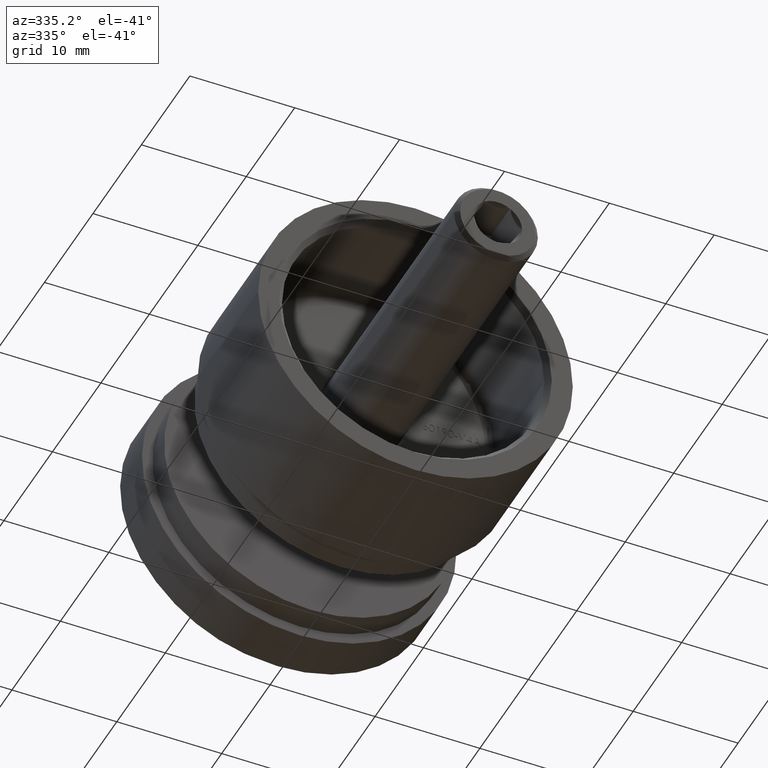
[diagram: clean part render]
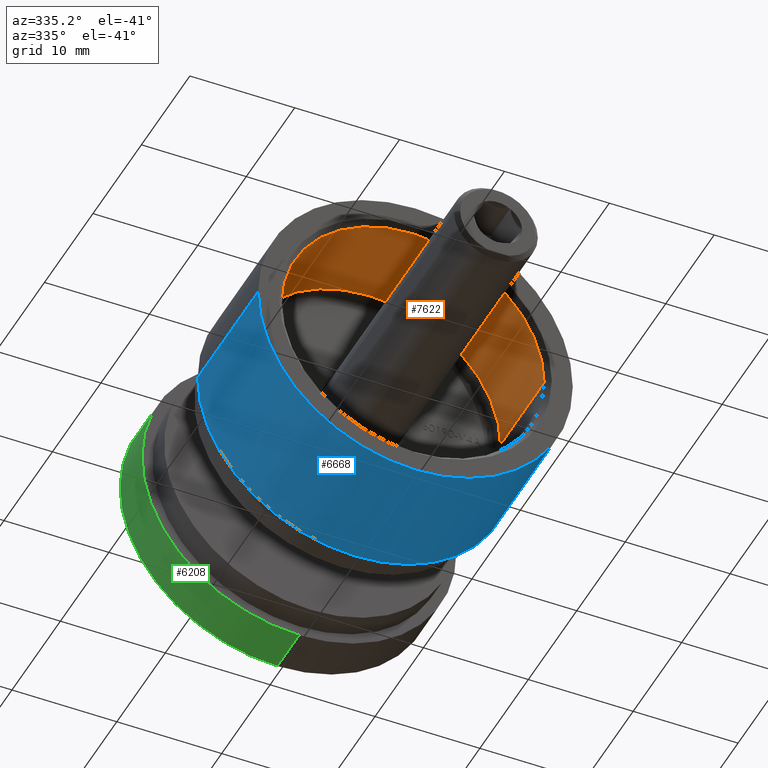
[diagram: same view with three faces highlighted in distinct colors, each labeled with its STEP entity id]
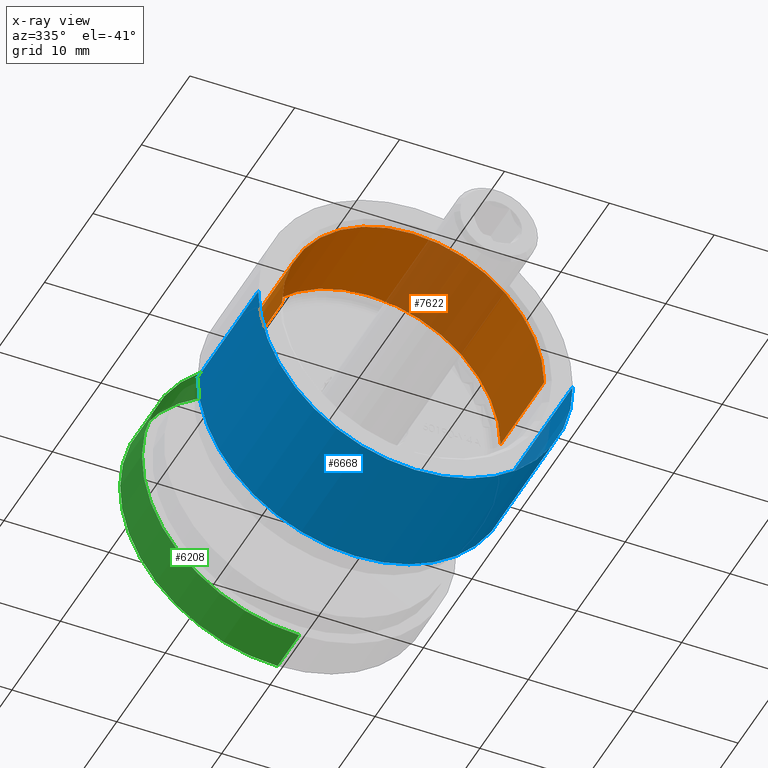
[diagram: x-ray of the same camera — body ghosted, the three highlighted faces saturated]
A machine part, auxiliary view with three faces highlighted in distinct colors.
The next image is the same camera in x-ray (body ghosted, the three faces saturated) — at least one of them is partly hidden behind the body in this view.
Their STEP definitions:

[orange] entity #7622 — the highlighted cylindrical surface (partial cylindrical patch) has radius 12.5 mm, axis along (-0, -1, -0).
#16 = AXIS2_PLACEMENT_3D ( 'NONE', #2054, #4400, #9917 ) ;
#43 = DIRECTION ( 'NONE',  ( 1.650797095189058802E-31, 1.000000000000000000, 0.000000000000000000 ) ) ;
#1051 = EDGE_CURVE ( 'NONE', #6366, #5705, #1372, .T. ) ;
#1217 = CARTESIAN_POINT ( 'NONE',  ( -12.50000000000000178, 0.5000000000000056621, 1.530808498934191521E-15 ) ) ;
#1279 = AXIS2_PLACEMENT_3D ( 'NONE', #1952, #12254, #3058 ) ;
#1372 = LINE ( 'NONE', #2470, #13678 ) ;
#1531 = ORIENTED_EDGE ( 'NONE', *, *, #11291, .T. ) ;
#1952 = CARTESIAN_POINT ( 'NONE',  ( -2.571758278209443239E-15, 0.5000000000000056621, 0.000000000000000000 ) ) ;
#2054 = CARTESIAN_POINT ( 'NONE',  ( -2.571758278209443239E-15, 0.5000000000000056621, 0.000000000000000000 ) ) ;
#2453 = CARTESIAN_POINT ( 'NONE',  ( -1.010333609296567339E-15, 0.5000000000000056621, 12.50000000000000000 ) ) ;
#2470 = CARTESIAN_POINT ( 'NONE',  ( -12.50000000000000178, 10.49999999999999822, 1.530808498934191521E-15 ) ) ;
#3058 = DIRECTION ( 'NONE',  ( 0.000000000000000000, 0.000000000000000000, -1.000000000000000000 ) ) ;
#3099 = CYLINDRICAL_SURFACE ( 'NONE', #10686, 12.50000000000000000 ) ;
#3212 = CARTESIAN_POINT ( 'NONE',  ( -12.50000000000000178, 9.499999999999998224, 1.530808498934191521E-15 ) ) ;
#3673 = ORIENTED_EDGE ( 'NONE', *, *, #1051, .F. ) ;
#4173 = VERTEX_POINT ( 'NONE', #4257 ) ;
#4257 = CARTESIAN_POINT ( 'NONE',  ( 12.49999999999999822, 9.499999999999998224, 0.000000000000000000 ) ) ;
#4395 = AXIS2_PLACEMENT_3D ( 'NONE', #11259, #43, #13640 ) ;
#4400 = DIRECTION ( 'NONE',  ( 0.000000000000000000, -1.000000000000000000, 0.000000000000000000 ) ) ;
#4724 = CARTESIAN_POINT ( 'NONE',  ( 12.49999999999999822, 10.49999999999999822, 0.000000000000000000 ) ) ;
#4932 = DIRECTION ( 'NONE',  ( -1.650797095189058802E-31, -1.000000000000000000, -0.000000000000000000 ) ) ;
#5578 = VERTEX_POINT ( 'NONE', #2453 ) ;
#5705 = VERTEX_POINT ( 'NONE', #1217 ) ;
#6366 = VERTEX_POINT ( 'NONE', #3212 ) ;
#6388 = EDGE_CURVE ( 'NONE', #7308, #5578, #11409, .T. ) ;
#6638 = LINE ( 'NONE', #4724, #9247 ) ;
#6742 = EDGE_LOOP ( 'NONE', ( #3673, #13224, #1531, #13690, #11341 ) ) ;
#7017 = DIRECTION ( 'NONE',  ( -1.650797095189058802E-31, -1.000000000000000000, -0.000000000000000000 ) ) ;
#7308 = VERTEX_POINT ( 'NONE', #14034 ) ;
#7520 = FACE_OUTER_BOUND ( 'NONE', #6742, .T. ) ;
#7622 = ADVANCED_FACE ( 'NONE', ( #7520 ), #3099, .F. ) ;
#8144 = CARTESIAN_POINT ( 'NONE',  ( -2.571758278209441661E-15, 10.49999999999999822, 0.000000000000000000 ) ) ;
#8432 = DIRECTION ( 'NONE',  ( 1.000000000000000000, 0.000000000000000000, 0.000000000000000000 ) ) ;
#9247 = VECTOR ( 'NONE', #7017, 1000.000000000000000 ) ;
#9917 = DIRECTION ( 'NONE',  ( 0.000000000000000000, 0.000000000000000000, -1.000000000000000000 ) ) ;
#10686 = AXIS2_PLACEMENT_3D ( 'NONE', #8144, #11518, #8432 ) ;
#11259 = CARTESIAN_POINT ( 'NONE',  ( -2.571758278209441661E-15, 9.499999999999998224, 0.000000000000000000 ) ) ;
#11291 = EDGE_CURVE ( 'NONE', #4173, #7308, #6638, .T. ) ;
#11341 = ORIENTED_EDGE ( 'NONE', *, *, #14267, .T. ) ;
#11409 = CIRCLE ( 'NONE', #16, 12.50000000000000000 ) ;
#11518 = DIRECTION ( 'NONE',  ( -1.650797095189058802E-31, -1.000000000000000000, -0.000000000000000000 ) ) ;
#12060 = CIRCLE ( 'NONE', #4395, 12.50000000000000000 ) ;
#12254 = DIRECTION ( 'NONE',  ( 0.000000000000000000, -1.000000000000000000, 0.000000000000000000 ) ) ;
#12605 = EDGE_CURVE ( 'NONE', #6366, #4173, #12060, .T. ) ;
#13224 = ORIENTED_EDGE ( 'NONE', *, *, #12605, .T. ) ;
#13640 = DIRECTION ( 'NONE',  ( 1.000000000000000000, 0.000000000000000000, 0.000000000000000000 ) ) ;
#13678 = VECTOR ( 'NONE', #4932, 1000.000000000000000 ) ;
#13690 = ORIENTED_EDGE ( 'NONE', *, *, #6388, .T. ) ;
#14034 = CARTESIAN_POINT ( 'NONE',  ( 12.49999999999999822, 0.5000000000000056621, 0.000000000000000000 ) ) ;
#14267 = EDGE_CURVE ( 'NONE', #5578, #5705, #14308, .T. ) ;
#14308 = CIRCLE ( 'NONE', #1279, 12.50000000000000000 ) ;

[blue] entity #6668 — the highlighted cylindrical surface (partial cylindrical patch) has radius 15 mm, axis along (-0, -1, -0).
#21 = CARTESIAN_POINT ( 'NONE',  ( -2.571758278209441661E-15, 10.49999999999999822, 0.000000000000000000 ) ) ;
#305 = DIRECTION ( 'NONE',  ( 1.000000000000000000, -1.650797095189058583E-31, 0.000000000000000000 ) ) ;
#431 = VERTEX_POINT ( 'NONE', #8180 ) ;
#1631 = CIRCLE ( 'NONE', #10668, 15.00000000000000178 ) ;
#2013 = VERTEX_POINT ( 'NONE', #6152 ) ;
#2056 = VECTOR ( 'NONE', #6705, 1000.000000000000000 ) ;
#2098 = CARTESIAN_POINT ( 'NONE',  ( -15.00000000000000355, 2.476195642783588203E-30, 1.836970198721029983E-15 ) ) ;
#2590 = DIRECTION ( 'NONE',  ( -0.000000000000000000, -1.000000000000000000, -0.000000000000000000 ) ) ;
#2856 = VERTEX_POINT ( 'NONE', #10858 ) ;
#2945 = CIRCLE ( 'NONE', #12905, 15.00000000000000178 ) ;
#3144 = FACE_OUTER_BOUND ( 'NONE', #8217, .T. ) ;
#3262 = EDGE_CURVE ( 'NONE', #7880, #2013, #1631, .T. ) ;
#3655 = ORIENTED_EDGE ( 'NONE', *, *, #14359, .F. ) ;
#4373 = CARTESIAN_POINT ( 'NONE',  ( 15.00000000000000000, 10.49999999999999822, 0.000000000000000000 ) ) ;
#4629 = VECTOR ( 'NONE', #5591, 1000.000000000000000 ) ;
#4896 = EDGE_CURVE ( 'NONE', #431, #7880, #2945, .T. ) ;
#5221 = VERTEX_POINT ( 'NONE', #2098 ) ;
#5591 = DIRECTION ( 'NONE',  ( -1.650797095189058802E-31, -1.000000000000000000, -0.000000000000000000 ) ) ;
#6152 = CARTESIAN_POINT ( 'NONE',  ( 15.00000000000000000, 12.50000000000000000, 0.000000000000000000 ) ) ;
#6411 = CIRCLE ( 'NONE', #9579, 15.00000000000000178 ) ;
#6668 = ADVANCED_FACE ( 'NONE', ( #3144 ), #8949, .T. ) ;
#6705 = DIRECTION ( 'NONE',  ( -1.650797095189058802E-31, -1.000000000000000000, -0.000000000000000000 ) ) ;
#6941 = CARTESIAN_POINT ( 'NONE',  ( -2.571758278209443239E-15, 0.000000000000000000, 0.000000000000000000 ) ) ;
#7582 = AXIS2_PLACEMENT_3D ( 'NONE', #21, #14471, #13413 ) ;
#7880 = VERTEX_POINT ( 'NONE', #11135 ) ;
#8175 = DIRECTION ( 'NONE',  ( -1.650797095189058802E-31, -1.000000000000000000, -0.000000000000000000 ) ) ;
#8180 = CARTESIAN_POINT ( 'NONE',  ( -15.00000000000000355, 12.50000000000000000, 1.836970198721029983E-15 ) ) ;
#8217 = EDGE_LOOP ( 'NONE', ( #10824, #11994, #10108, #9617, #3655 ) ) ;
#8800 = EDGE_CURVE ( 'NONE', #2013, #2856, #11147, .T. ) ;
#8949 = CYLINDRICAL_SURFACE ( 'NONE', #7582, 15.00000000000000178 ) ;
#9313 = CARTESIAN_POINT ( 'NONE',  ( -2.571758278209441267E-15, 12.50000000000000000, 0.000000000000000000 ) ) ;
#9579 = AXIS2_PLACEMENT_3D ( 'NONE', #6941, #8175, #305 ) ;
#9617 = ORIENTED_EDGE ( 'NONE', *, *, #8800, .T. ) ;
#10046 = CARTESIAN_POINT ( 'NONE',  ( -15.00000000000000355, 10.49999999999999822, 1.836970198721029983E-15 ) ) ;
#10108 = ORIENTED_EDGE ( 'NONE', *, *, #3262, .T. ) ;
#10668 = AXIS2_PLACEMENT_3D ( 'NONE', #9313, #2590, #11623 ) ;
#10731 = CARTESIAN_POINT ( 'NONE',  ( -2.571758278209441267E-15, 12.50000000000000000, 0.000000000000000000 ) ) ;
#10824 = ORIENTED_EDGE ( 'NONE', *, *, #11863, .F. ) ;
#10858 = CARTESIAN_POINT ( 'NONE',  ( 15.00000000000000000, -2.476195642783588203E-30, 0.000000000000000000 ) ) ;
#11135 = CARTESIAN_POINT ( 'NONE',  ( -2.571758278209441267E-15, 12.50000000000000000, -15.00000000000000178 ) ) ;
#11147 = LINE ( 'NONE', #4373, #4629 ) ;
#11623 = DIRECTION ( 'NONE',  ( 0.000000000000000000, 0.000000000000000000, 1.000000000000000000 ) ) ;
#11791 = DIRECTION ( 'NONE',  ( -0.000000000000000000, -1.000000000000000000, -0.000000000000000000 ) ) ;
#11863 = EDGE_CURVE ( 'NONE', #431, #5221, #12760, .T. ) ;
#11907 = DIRECTION ( 'NONE',  ( 0.000000000000000000, 0.000000000000000000, 1.000000000000000000 ) ) ;
#11994 = ORIENTED_EDGE ( 'NONE', *, *, #4896, .T. ) ;
#12760 = LINE ( 'NONE', #10046, #2056 ) ;
#12905 = AXIS2_PLACEMENT_3D ( 'NONE', #10731, #11791, #11907 ) ;
#13413 = DIRECTION ( 'NONE',  ( 1.000000000000000000, 0.000000000000000000, 0.000000000000000000 ) ) ;
#14359 = EDGE_CURVE ( 'NONE', #5221, #2856, #6411, .T. ) ;
#14471 = DIRECTION ( 'NONE',  ( -1.650797095189058802E-31, -1.000000000000000000, -0.000000000000000000 ) ) ;

[green] entity #6208 — the highlighted cylindrical surface (partial cylindrical patch) has radius 15 mm, axis along (-0, -1, -0).
#455 = DIRECTION ( 'NONE',  ( 0.000000000000000000, 0.000000000000000000, -1.000000000000000000 ) ) ;
#718 = DIRECTION ( 'NONE',  ( 0.000000000000000000, 0.000000000000000000, -1.000000000000000000 ) ) ;
#1250 = VERTEX_POINT ( 'NONE', #10784 ) ;
#2249 = ORIENTED_EDGE ( 'NONE', *, *, #6589, .T. ) ;
#2296 = DIRECTION ( 'NONE',  ( -0.000000000000000000, -1.000000000000000000, -0.000000000000000000 ) ) ;
#2516 = LINE ( 'NONE', #14187, #8509 ) ;
#2580 = CARTESIAN_POINT ( 'NONE',  ( 0.000000000000000000, 0.000000000000000000, 0.000000000000000000 ) ) ;
#2744 = LINE ( 'NONE', #7305, #14361 ) ;
#2746 = AXIS2_PLACEMENT_3D ( 'NONE', #5125, #11698, #5084 ) ;
#4331 = VERTEX_POINT ( 'NONE', #6530 ) ;
#4997 = CARTESIAN_POINT ( 'NONE',  ( 0.000000000000000000, 5.000000000000000888, -15.00000000000000000 ) ) ;
#5073 = AXIS2_PLACEMENT_3D ( 'NONE', #9019, #2296, #455 ) ;
#5084 = DIRECTION ( 'NONE',  ( 0.000000000000000000, 0.000000000000000000, -1.000000000000000000 ) ) ;
#5089 = EDGE_CURVE ( 'NONE', #1250, #4331, #2744, .T. ) ;
#5125 = CARTESIAN_POINT ( 'NONE',  ( 0.000000000000000000, 9.500000000000001776, 0.000000000000000000 ) ) ;
#6107 = VERTEX_POINT ( 'NONE', #10384 ) ;
#6117 = DIRECTION ( 'NONE',  ( -0.000000000000000000, -1.000000000000000000, -0.000000000000000000 ) ) ;
#6208 = ADVANCED_FACE ( 'NONE', ( #7191 ), #13149, .T. ) ;
#6530 = CARTESIAN_POINT ( 'NONE',  ( -2.250000000000000888, 5.000000000000000888, 14.83028994996389116 ) ) ;
#6589 = EDGE_CURVE ( 'NONE', #1250, #6107, #13315, .T. ) ;
#6611 = ORIENTED_EDGE ( 'NONE', *, *, #13889, .F. ) ;
#7191 = FACE_OUTER_BOUND ( 'NONE', #12611, .T. ) ;
#7305 = CARTESIAN_POINT ( 'NONE',  ( -2.250000000000000888, 9.500000000000001776, 14.83028994996389116 ) ) ;
#7819 = CIRCLE ( 'NONE', #5073, 15.00000000000000000 ) ;
#8509 = VECTOR ( 'NONE', #9876, 1000.000000000000000 ) ;
#9019 = CARTESIAN_POINT ( 'NONE',  ( 0.000000000000000000, 5.000000000000000888, 0.000000000000000000 ) ) ;
#9544 = ORIENTED_EDGE ( 'NONE', *, *, #5089, .F. ) ;
#9669 = DIRECTION ( 'NONE',  ( -0.000000000000000000, -1.000000000000000000, -0.000000000000000000 ) ) ;
#9792 = EDGE_CURVE ( 'NONE', #6107, #10180, #2516, .T. ) ;
#9876 = DIRECTION ( 'NONE',  ( -0.000000000000000000, -1.000000000000000000, -0.000000000000000000 ) ) ;
#10180 = VERTEX_POINT ( 'NONE', #4997 ) ;
#10384 = CARTESIAN_POINT ( 'NONE',  ( 0.000000000000000000, 9.500000000000001776, -15.00000000000000355 ) ) ;
#10784 = CARTESIAN_POINT ( 'NONE',  ( -2.250000000000000888, 9.500000000000001776, 14.83028994996389116 ) ) ;
#11330 = AXIS2_PLACEMENT_3D ( 'NONE', #2580, #9669, #718 ) ;
#11698 = DIRECTION ( 'NONE',  ( -0.000000000000000000, -1.000000000000000000, -0.000000000000000000 ) ) ;
#12373 = ORIENTED_EDGE ( 'NONE', *, *, #9792, .T. ) ;
#12611 = EDGE_LOOP ( 'NONE', ( #2249, #12373, #6611, #9544 ) ) ;
#13149 = CYLINDRICAL_SURFACE ( 'NONE', #11330, 15.00000000000000000 ) ;
#13315 = CIRCLE ( 'NONE', #2746, 15.00000000000000178 ) ;
#13889 = EDGE_CURVE ( 'NONE', #4331, #10180, #7819, .T. ) ;
#14187 = CARTESIAN_POINT ( 'NONE',  ( 0.000000000000000000, 0.000000000000000000, -15.00000000000000000 ) ) ;
#14361 = VECTOR ( 'NONE', #6117, 1000.000000000000000 ) ;